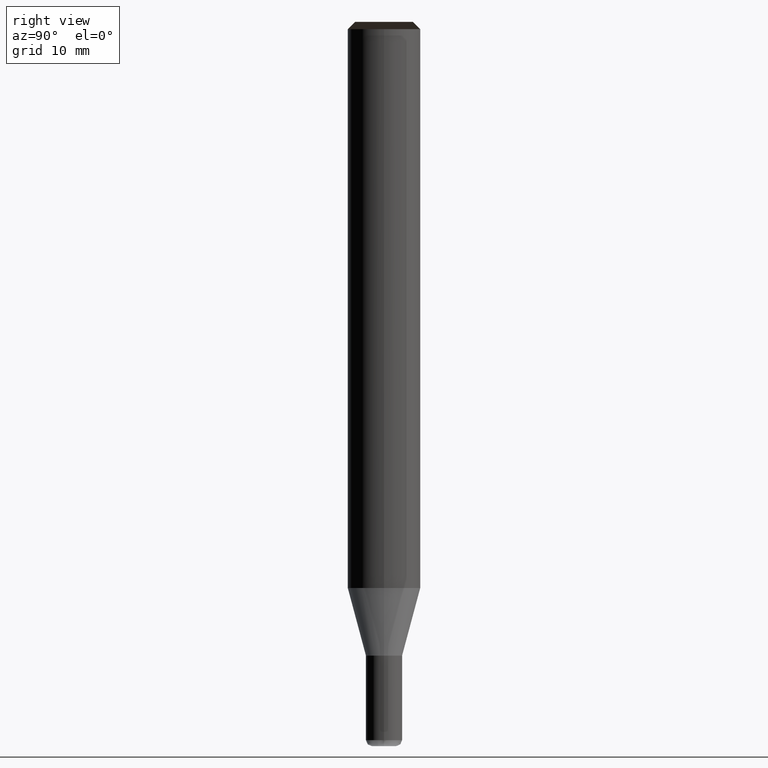
[diagram: clean part render]
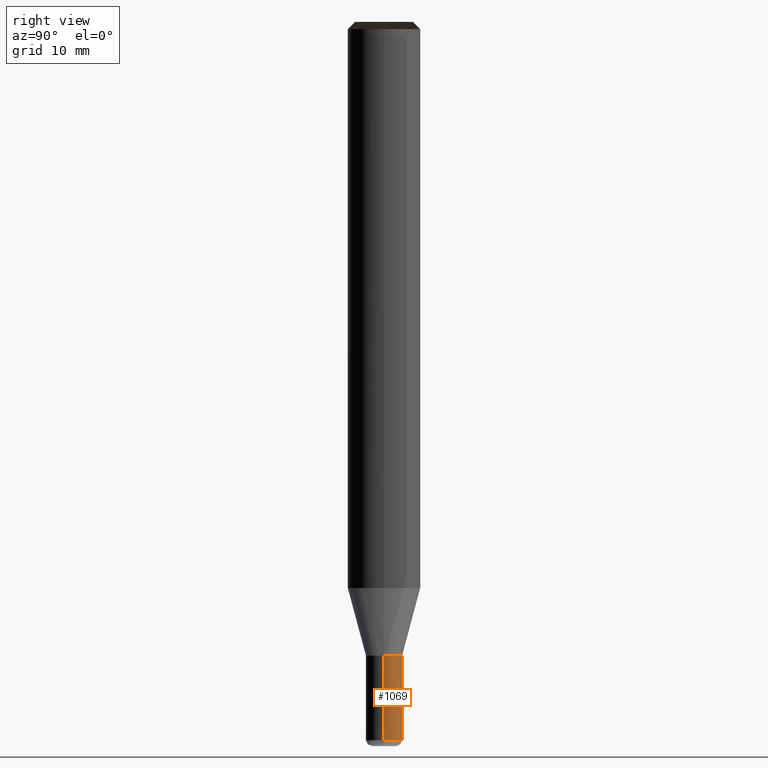
[diagram: same view with one face highlighted and labeled with its STEP entity id]
A machine part, right view. The second image highlights one B-rep face of the part: STEP entity #1069.
In plain terms, the highlighted face is a freeform B-spline surface patch.
Its self-contained STEP definition (entity closure, byte-faithful):
#951=CARTESIAN_POINT('',(1.5,0.0,-12.598076211353));
#952=CARTESIAN_POINT('',(1.5,1.5,-12.598076211353));
#953=CARTESIAN_POINT('',(0.0,1.5,-12.598076211353));
#954=CARTESIAN_POINT('',(-1.5,1.5,-12.598076211353));
#955=CARTESIAN_POINT('',(-1.5,0.0,-12.598076211353));
#956=CARTESIAN_POINT('',(1.5,0.0,-5.598076211353));
#957=CARTESIAN_POINT('',(1.5,1.5,-5.598076211353));
#958=CARTESIAN_POINT('',(0.0,1.5,-5.598076211353));
#959=CARTESIAN_POINT('',(-1.5,1.5,-5.598076211353));
#960=CARTESIAN_POINT('',(-1.5,0.0,-5.598076211353));
#1050=(
BOUNDED_SURFACE()
B_SPLINE_SURFACE(1,2,(
(#951,#952,#953,#954,#955),
(#956,#957,#958,#959,#960)
), .UNSPECIFIED.,.F.,.F.,.F.)
B_SPLINE_SURFACE_WITH_KNOTS((2,2),(3,2,3),(
0.0,1.0),(
0.0,0.5,1.0), .UNSPECIFIED.)
GEOMETRIC_REPRESENTATION_ITEM()
RATIONAL_B_SPLINE_SURFACE(((1.0,0.707106781187,1.0,0.707106781187,1.0),
(1.0,0.707106781187,1.0,0.707106781187,1.0)
))
REPRESENTATION_ITEM('')
SURFACE()
);
#1051=(
BOUNDED_CURVE()
B_SPLINE_CURVE(2,(#956,#957,#958,#959,#960),.UNSPECIFIED.,.F.,.F.)
B_SPLINE_CURVE_WITH_KNOTS((3,2,3),
(0.0,0.5,1.0),.UNSPECIFIED.)
CURVE()
GEOMETRIC_REPRESENTATION_ITEM()
RATIONAL_B_SPLINE_CURVE((1.0,0.707106781187,1.0,0.707106781187,1.0))
REPRESENTATION_ITEM('')
);
#1052=(
BOUNDED_CURVE()
B_SPLINE_CURVE(1,(#960,#955),.UNSPECIFIED.,.F.,.F.)
B_SPLINE_CURVE_WITH_KNOTS((2,2),
(0.0,1.0),.UNSPECIFIED.)
CURVE()
GEOMETRIC_REPRESENTATION_ITEM()
RATIONAL_B_SPLINE_CURVE((1.0,1.0))
REPRESENTATION_ITEM('')
);
#1053=(
BOUNDED_CURVE()
B_SPLINE_CURVE(2,(#955,#954,#953,#952,#951),.UNSPECIFIED.,.F.,.F.)
B_SPLINE_CURVE_WITH_KNOTS((3,2,3),
(0.0,0.5,1.0),.UNSPECIFIED.)
CURVE()
GEOMETRIC_REPRESENTATION_ITEM()
RATIONAL_B_SPLINE_CURVE((1.0,0.707106781187,1.0,0.707106781187,1.0))
REPRESENTATION_ITEM('')
);
#1054=(
BOUNDED_CURVE()
B_SPLINE_CURVE(1,(#951,#956),.UNSPECIFIED.,.F.,.F.)
B_SPLINE_CURVE_WITH_KNOTS((2,2),
(0.0,1.0),.UNSPECIFIED.)
CURVE()
GEOMETRIC_REPRESENTATION_ITEM()
RATIONAL_B_SPLINE_CURVE((1.0,1.0))
REPRESENTATION_ITEM('')
);
#1055=VERTEX_POINT('',#951);
#1056=VERTEX_POINT('',#955);
#1057=VERTEX_POINT('',#956);
#1058=VERTEX_POINT('',#960);
#1059=EDGE_CURVE('',#1057,#1058,#1051,.T.);
#1060=EDGE_CURVE('',#1058,#1056,#1052,.T.);
#1061=EDGE_CURVE('',#1056,#1055,#1053,.T.);
#1062=EDGE_CURVE('',#1055,#1057,#1054,.T.);
#1063=ORIENTED_EDGE('',*,*,#1059,.T.);
#1064=ORIENTED_EDGE('',*,*,#1060,.T.);
#1065=ORIENTED_EDGE('',*,*,#1061,.T.);
#1066=ORIENTED_EDGE('',*,*,#1062,.T.);
#1067=EDGE_LOOP('',(#1063,#1064,#1065,#1066));
#1068=FACE_OUTER_BOUND('',#1067,.T.);
#1069=ADVANCED_FACE('',(#1068),#1050,.T.);